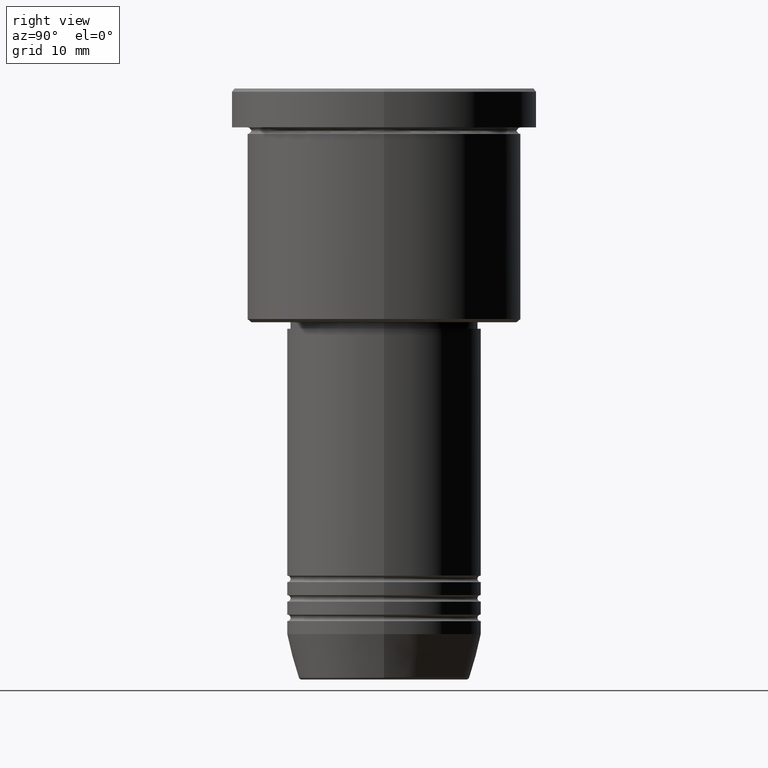
[diagram: clean part render]
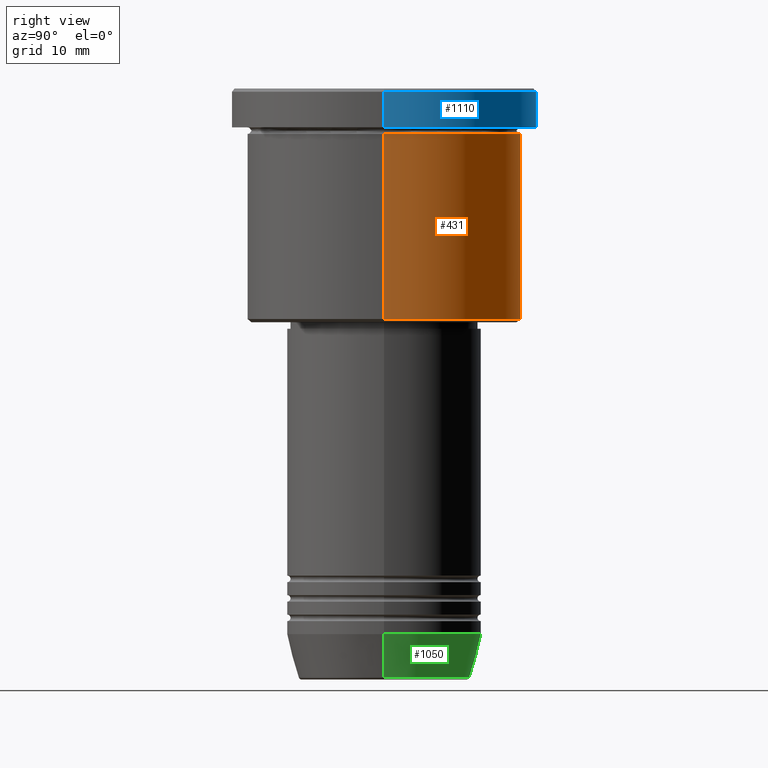
[diagram: same view with three faces highlighted in distinct colors, each labeled with its STEP entity id]
A machine part, right view with three faces highlighted in distinct colors.
Their STEP definitions:

[orange] entity #431 — the highlighted cylindrical surface (partial cylindrical patch) has radius 21 mm, axis along (-0, -0, 1).
#15 = VERTEX_POINT ( 'NONE', #388 ) ;
#36 = VERTEX_POINT ( 'NONE', #982 ) ;
#46 = AXIS2_PLACEMENT_3D ( 'NONE', #383, #472, #926 ) ;
#56 = ORIENTED_EDGE ( 'NONE', *, *, #59, .F. ) ;
#59 = EDGE_CURVE ( 'NONE', #15, #588, #615, .T. ) ;
#86 = CARTESIAN_POINT ( 'NONE',  ( 21.00000000000000000, 0.000000000000000000, 0.000000000000000000 ) ) ;
#92 = LINE ( 'NONE', #630, #138 ) ;
#138 = VECTOR ( 'NONE', #177, 1000.000000000000000 ) ;
#140 = DIRECTION ( 'NONE',  ( 1.000000000000000000, 0.000000000000000000, 0.000000000000000000 ) ) ;
#177 = DIRECTION ( 'NONE',  ( -0.000000000000000000, -0.000000000000000000, 1.000000000000000000 ) ) ;
#181 = EDGE_CURVE ( 'NONE', #766, #588, #92, .T. ) ;
#217 = EDGE_CURVE ( 'NONE', #36, #15, #1174, .T. ) ;
#230 = CARTESIAN_POINT ( 'NONE',  ( -21.00000000000000000, 2.571758278209441661E-15, -6.999999999999994671 ) ) ;
#383 = CARTESIAN_POINT ( 'NONE',  ( 0.000000000000000000, 0.000000000000000000, -35.50000000000000711 ) ) ;
#388 = CARTESIAN_POINT ( 'NONE',  ( 21.00000000000000000, 0.000000000000000000, -6.999999999999994671 ) ) ;
#431 = ADVANCED_FACE ( 'NONE', ( #483 ), #489, .T. ) ;
#472 = DIRECTION ( 'NONE',  ( -0.000000000000000000, -0.000000000000000000, 1.000000000000000000 ) ) ;
#474 = VECTOR ( 'NONE', #831, 1000.000000000000000 ) ;
#483 = FACE_OUTER_BOUND ( 'NONE', #980, .T. ) ;
#489 = CYLINDRICAL_SURFACE ( 'NONE', #1079, 21.00000000000000000 ) ;
#532 = DIRECTION ( 'NONE',  ( -0.000000000000000000, -0.000000000000000000, 1.000000000000000000 ) ) ;
#567 = DIRECTION ( 'NONE',  ( -0.000000000000000000, -0.000000000000000000, 1.000000000000000000 ) ) ;
#588 = VERTEX_POINT ( 'NONE', #230 ) ;
#611 = CARTESIAN_POINT ( 'NONE',  ( 0.000000000000000000, 0.000000000000000000, -6.999999999999994671 ) ) ;
#615 = CIRCLE ( 'NONE', #720, 21.00000000000000000 ) ;
#630 = CARTESIAN_POINT ( 'NONE',  ( -21.00000000000000000, 2.571758278209441661E-15, 0.000000000000000000 ) ) ;
#661 = CARTESIAN_POINT ( 'NONE',  ( 0.000000000000000000, 0.000000000000000000, 0.000000000000000000 ) ) ;
#707 = EDGE_CURVE ( 'NONE', #36, #766, #816, .T. ) ;
#720 = AXIS2_PLACEMENT_3D ( 'NONE', #611, #532, #140 ) ;
#736 = CARTESIAN_POINT ( 'NONE',  ( -21.00000000000000000, 2.571758278209441661E-15, -35.50000000000000711 ) ) ;
#766 = VERTEX_POINT ( 'NONE', #736 ) ;
#816 = CIRCLE ( 'NONE', #46, 21.00000000000000000 ) ;
#831 = DIRECTION ( 'NONE',  ( -0.000000000000000000, -0.000000000000000000, 1.000000000000000000 ) ) ;
#926 = DIRECTION ( 'NONE',  ( -1.000000000000000000, 0.000000000000000000, 0.000000000000000000 ) ) ;
#980 = EDGE_LOOP ( 'NONE', ( #1010, #1122, #56, #1056 ) ) ;
#982 = CARTESIAN_POINT ( 'NONE',  ( 21.00000000000000000, 0.000000000000000000, -35.50000000000000711 ) ) ;
#1010 = ORIENTED_EDGE ( 'NONE', *, *, #707, .T. ) ;
#1056 = ORIENTED_EDGE ( 'NONE', *, *, #217, .F. ) ;
#1079 = AXIS2_PLACEMENT_3D ( 'NONE', #661, #567, #1117 ) ;
#1117 = DIRECTION ( 'NONE',  ( 1.000000000000000000, 0.000000000000000000, 0.000000000000000000 ) ) ;
#1122 = ORIENTED_EDGE ( 'NONE', *, *, #181, .T. ) ;
#1174 = LINE ( 'NONE', #86, #474 ) ;

[blue] entity #1110 — the highlighted cylindrical surface (partial cylindrical patch) has radius 23.5 mm, axis along (-0, -0, 1).
#1 = EDGE_CURVE ( 'NONE', #344, #1020, #1113, .T. ) ;
#7 = DIRECTION ( 'NONE',  ( 1.000000000000000000, 0.000000000000000000, 0.000000000000000000 ) ) ;
#49 = DIRECTION ( 'NONE',  ( 0.000000000000000000, 0.000000000000000000, -1.000000000000000000 ) ) ;
#107 = CARTESIAN_POINT ( 'NONE',  ( 23.50000000000000000, 0.000000000000000000, 0.000000000000000000 ) ) ;
#143 = AXIS2_PLACEMENT_3D ( 'NONE', #405, #49, #341 ) ;
#174 = CARTESIAN_POINT ( 'NONE',  ( 23.50000000000000000, 0.000000000000000000, -0.5000000000000143219 ) ) ;
#183 = DIRECTION ( 'NONE',  ( -0.000000000000000000, -0.000000000000000000, 1.000000000000000000 ) ) ;
#215 = EDGE_LOOP ( 'NONE', ( #306, #440, #401, #962 ) ) ;
#263 = CYLINDRICAL_SURFACE ( 'NONE', #1054, 23.50000000000000000 ) ;
#276 = CARTESIAN_POINT ( 'NONE',  ( 0.000000000000000000, 0.000000000000000000, 0.000000000000000000 ) ) ;
#291 = DIRECTION ( 'NONE',  ( -0.000000000000000000, -0.000000000000000000, 1.000000000000000000 ) ) ;
#306 = ORIENTED_EDGE ( 'NONE', *, *, #641, .T. ) ;
#341 = DIRECTION ( 'NONE',  ( 1.000000000000000000, 0.000000000000000000, 0.000000000000000000 ) ) ;
#344 = VERTEX_POINT ( 'NONE', #927 ) ;
#401 = ORIENTED_EDGE ( 'NONE', *, *, #568, .T. ) ;
#405 = CARTESIAN_POINT ( 'NONE',  ( 0.000000000000000000, 0.000000000000000000, -0.5000000000000143219 ) ) ;
#440 = ORIENTED_EDGE ( 'NONE', *, *, #1, .T. ) ;
#451 = VERTEX_POINT ( 'NONE', #971 ) ;
#538 = VECTOR ( 'NONE', #291, 1000.000000000000000 ) ;
#539 = DIRECTION ( 'NONE',  ( 1.000000000000000000, 0.000000000000000000, 0.000000000000000000 ) ) ;
#559 = DIRECTION ( 'NONE',  ( -0.000000000000000000, -0.000000000000000000, 1.000000000000000000 ) ) ;
#565 = DIRECTION ( 'NONE',  ( -0.000000000000000000, -0.000000000000000000, 1.000000000000000000 ) ) ;
#568 = EDGE_CURVE ( 'NONE', #1020, #583, #618, .T. ) ;
#583 = VERTEX_POINT ( 'NONE', #174 ) ;
#618 = CIRCLE ( 'NONE', #143, 23.50000000000000000 ) ;
#641 = EDGE_CURVE ( 'NONE', #451, #344, #925, .T. ) ;
#643 = EDGE_CURVE ( 'NONE', #451, #583, #1011, .T. ) ;
#684 = AXIS2_PLACEMENT_3D ( 'NONE', #930, #559, #7 ) ;
#827 = FACE_OUTER_BOUND ( 'NONE', #215, .T. ) ;
#858 = CARTESIAN_POINT ( 'NONE',  ( -23.50000000000000000, 2.877919977996280320E-15, 0.000000000000000000 ) ) ;
#925 = CIRCLE ( 'NONE', #684, 23.50000000000000000 ) ;
#927 = CARTESIAN_POINT ( 'NONE',  ( -23.50000000000000000, 2.877919977996280320E-15, -5.999999999999994671 ) ) ;
#930 = CARTESIAN_POINT ( 'NONE',  ( 0.000000000000000000, 0.000000000000000000, -5.999999999999994671 ) ) ;
#962 = ORIENTED_EDGE ( 'NONE', *, *, #643, .F. ) ;
#971 = CARTESIAN_POINT ( 'NONE',  ( 23.50000000000000000, 0.000000000000000000, -5.999999999999994671 ) ) ;
#1011 = LINE ( 'NONE', #107, #1070 ) ;
#1020 = VERTEX_POINT ( 'NONE', #1072 ) ;
#1054 = AXIS2_PLACEMENT_3D ( 'NONE', #276, #565, #539 ) ;
#1070 = VECTOR ( 'NONE', #183, 1000.000000000000000 ) ;
#1072 = CARTESIAN_POINT ( 'NONE',  ( -23.50000000000000000, 2.877919977996280320E-15, -0.5000000000000143219 ) ) ;
#1110 = ADVANCED_FACE ( 'NONE', ( #827 ), #263, .T. ) ;
#1113 = LINE ( 'NONE', #858, #538 ) ;

[green] entity #1050 — the highlighted conical surface has half-angle 15 deg.
#12 = LINE ( 'NONE', #571, #194 ) ;
#33 = CARTESIAN_POINT ( 'NONE',  ( 0.000000000000000000, 0.000000000000000000, -83.99999999999998579 ) ) ;
#85 = DIRECTION ( 'NONE',  ( 0.2588190451025213501, 0.000000000000000000, 0.9659258262890680902 ) ) ;
#103 = EDGE_LOOP ( 'NONE', ( #668, #703, #1136, #1065 ) ) ;
#137 = CARTESIAN_POINT ( 'NONE',  ( -15.00000000000000000, 1.836970198721029589E-15, -83.99999999999998579 ) ) ;
#139 = CARTESIAN_POINT ( 'NONE',  ( 15.00000000000000000, 0.000000000000000000, -83.99999999999998579 ) ) ;
#194 = VECTOR ( 'NONE', #85, 1000.000000000000000 ) ;
#264 = VECTOR ( 'NONE', #453, 1000.000000000000000 ) ;
#288 = AXIS2_PLACEMENT_3D ( 'NONE', #1089, #860, #415 ) ;
#368 = AXIS2_PLACEMENT_3D ( 'NONE', #753, #914, #640 ) ;
#370 = EDGE_CURVE ( 'NONE', #460, #855, #471, .T. ) ;
#385 = DIRECTION ( 'NONE',  ( 1.000000000000000000, 0.000000000000000000, 0.000000000000000000 ) ) ;
#415 = DIRECTION ( 'NONE',  ( 1.000000000000000000, 0.000000000000000000, 0.000000000000000000 ) ) ;
#441 = CARTESIAN_POINT ( 'NONE',  ( 13.22365507213718594, 0.000000000000000000, -90.62940952255124216 ) ) ;
#453 = DIRECTION ( 'NONE',  ( -0.2588190451025213501, 3.169619151431772337E-17, 0.9659258262890680902 ) ) ;
#460 = VERTEX_POINT ( 'NONE', #139 ) ;
#471 = CIRCLE ( 'NONE', #624, 15.00000000000000000 ) ;
#503 = CIRCLE ( 'NONE', #288, 13.22365507213718594 ) ;
#571 = CARTESIAN_POINT ( 'NONE',  ( 15.00000000000000000, 0.000000000000000000, -83.99999999999998579 ) ) ;
#624 = AXIS2_PLACEMENT_3D ( 'NONE', #33, #1102, #385 ) ;
#628 = FACE_OUTER_BOUND ( 'NONE', #103, .T. ) ;
#640 = DIRECTION ( 'NONE',  ( 1.000000000000000000, 0.000000000000000000, 0.000000000000000000 ) ) ;
#668 = ORIENTED_EDGE ( 'NONE', *, *, #783, .T. ) ;
#703 = ORIENTED_EDGE ( 'NONE', *, *, #1062, .T. ) ;
#734 = LINE ( 'NONE', #991, #264 ) ;
#753 = CARTESIAN_POINT ( 'NONE',  ( 0.000000000000000000, 0.000000000000000000, -83.99999999999998579 ) ) ;
#763 = EDGE_CURVE ( 'NONE', #990, #460, #12, .T. ) ;
#783 = EDGE_CURVE ( 'NONE', #990, #907, #503, .T. ) ;
#855 = VERTEX_POINT ( 'NONE', #137 ) ;
#860 = DIRECTION ( 'NONE',  ( -0.000000000000000000, -0.000000000000000000, 1.000000000000000000 ) ) ;
#907 = VERTEX_POINT ( 'NONE', #1144 ) ;
#914 = DIRECTION ( 'NONE',  ( -0.000000000000000000, -0.000000000000000000, 1.000000000000000000 ) ) ;
#990 = VERTEX_POINT ( 'NONE', #441 ) ;
#991 = CARTESIAN_POINT ( 'NONE',  ( -15.00000000000000000, 1.836970198721029589E-15, -83.99999999999998579 ) ) ;
#1050 = ADVANCED_FACE ( 'NONE', ( #628 ), #1108, .T. ) ;
#1062 = EDGE_CURVE ( 'NONE', #907, #855, #734, .T. ) ;
#1065 = ORIENTED_EDGE ( 'NONE', *, *, #763, .F. ) ;
#1089 = CARTESIAN_POINT ( 'NONE',  ( 0.000000000000000000, 0.000000000000000000, -90.62940952255124216 ) ) ;
#1102 = DIRECTION ( 'NONE',  ( -0.000000000000000000, -0.000000000000000000, 1.000000000000000000 ) ) ;
#1108 = CONICAL_SURFACE ( 'NONE', #368, 15.00000000000000000, 0.2617993877991500740 ) ;
#1136 = ORIENTED_EDGE ( 'NONE', *, *, #370, .F. ) ;
#1144 = CARTESIAN_POINT ( 'NONE',  ( -13.22365507213718594, 1.728200442216587992E-15, -90.62940952255124216 ) ) ;